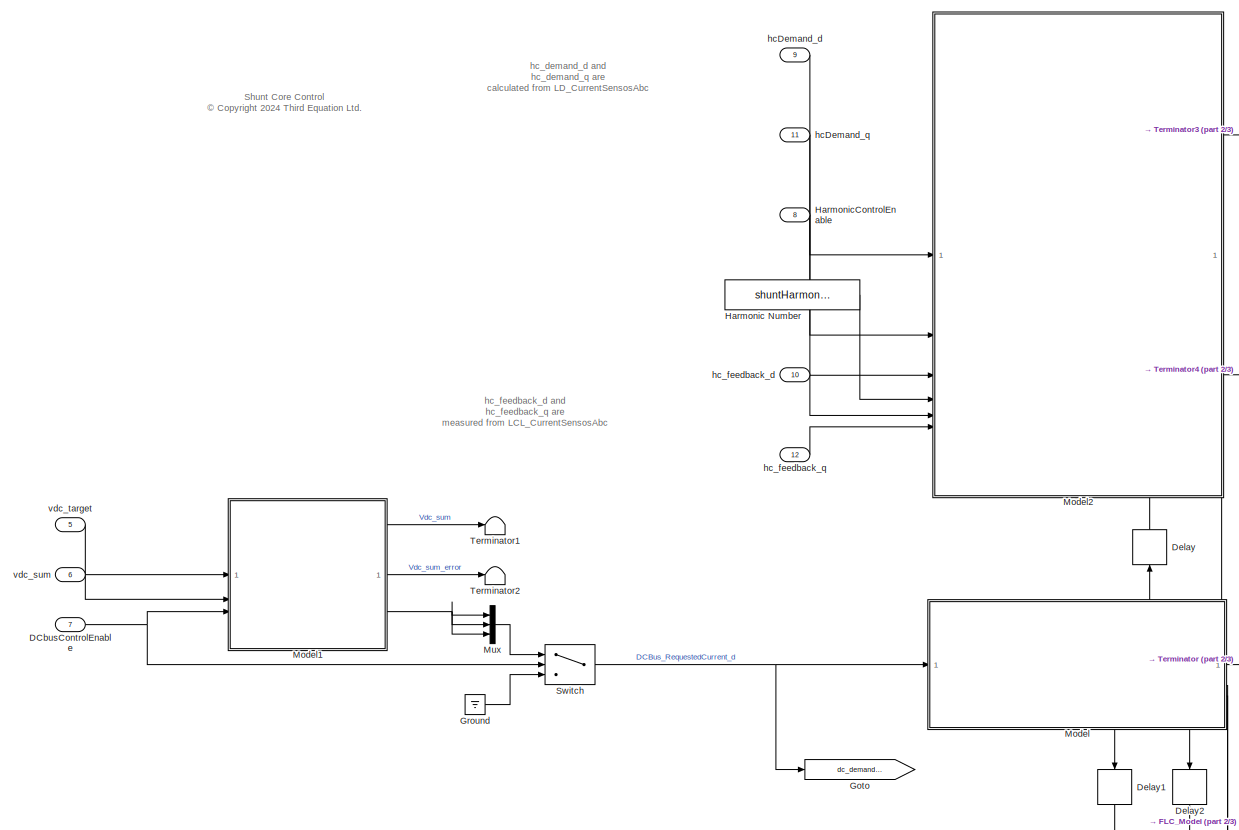
[diagram: root canvas - part 1/3, top left region]
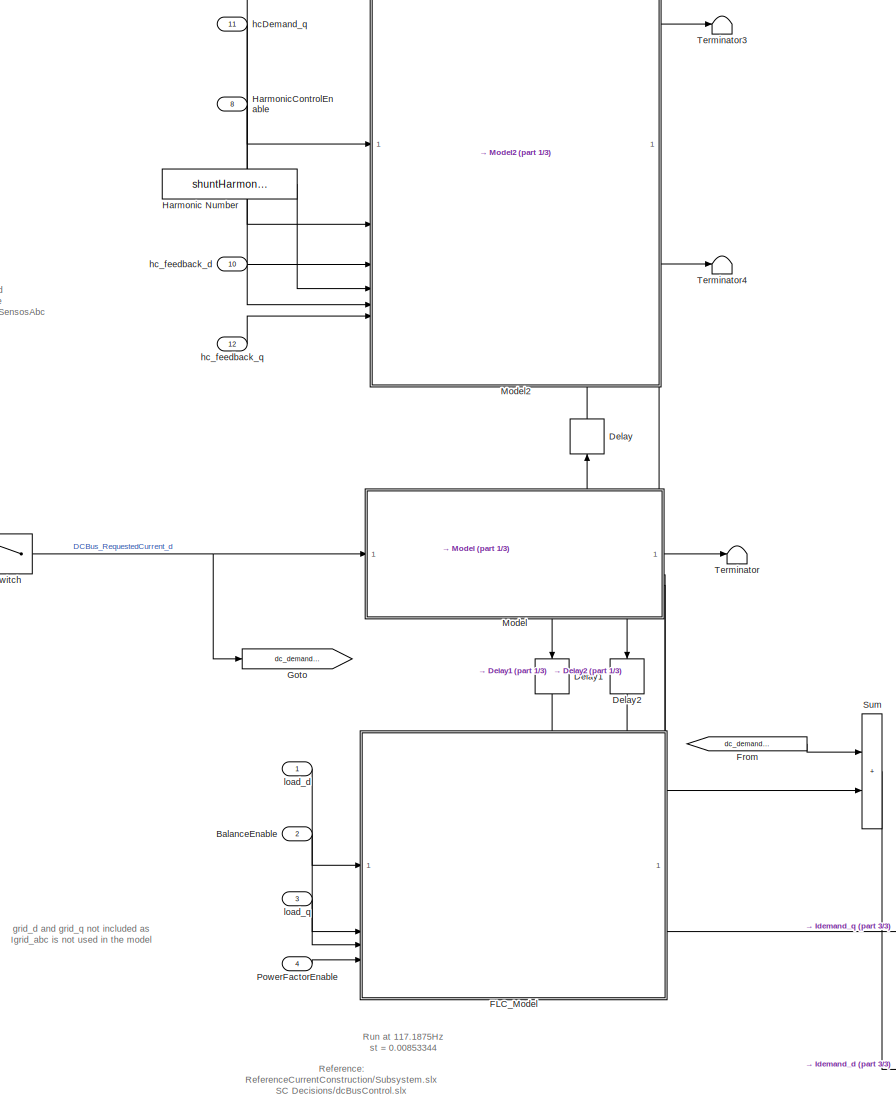
[diagram: root canvas - part 2/3, center side, full height]
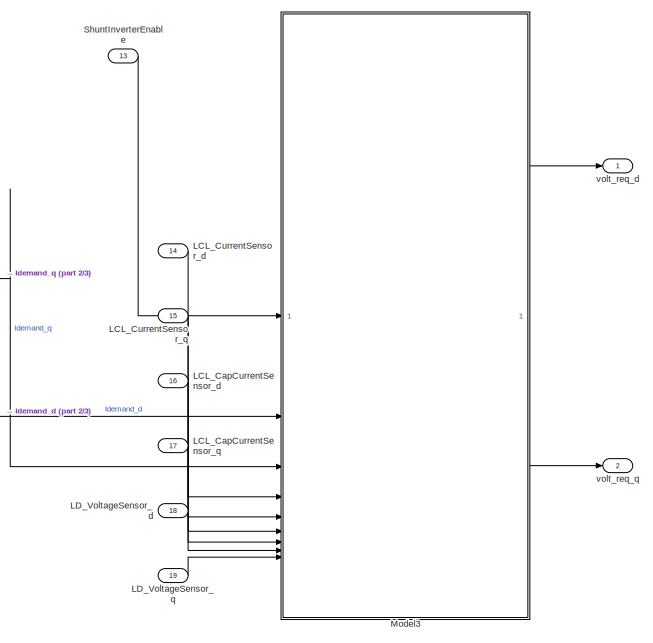
[diagram: root canvas - part 3/3, bottom right region]
MODEL slx_82d3854d65ed
KIND model
BLOCK [Inport] BalanceEnable
  OutDataTypeStr = boolean
  Port = 2
  PortDimensions = 1
BLOCK [Inport] DCbusControlEnable
  OutDataTypeStr = boolean
  Port = 7
  PortDimensions = 1
BLOCK [Delay] Delay
  DelayLength = 1
  InputPortMap = u0
  NameLocation = right
BLOCK [Delay] Delay1
  DelayLength = 1
  InputPortMap = u0
  NameLocation = right
BLOCK [Delay] Delay2
  DelayLength = 1
  InputPortMap = u0
  NameLocation = right
BLOCK [ModelReference] FLC_Model
  ModelNameDialog = LC_core_control.slx
  ModelReferenceVersion = 1.19
  PortSchema = {"entries":[{"content":{"sides":[{"content":{"connectorIds":["In1","In3","In4","In6"]},"type":"ConnectorPlacement.EquallySpacedRectSide","uuid":"de9eeada-7440-4b08-b2ec-4a7e429c8558"},{"content":{"connectorIds":["Out1","Out3"],"side":"RIGHT"},"type":"ConnectorPlacement.EquallySpacedRectSide","uuid":"554e5ea5-630c-4643-a219-0945d0fcd03f"},{"content":{"connectorIds":["Out2","Out4","In2","In5"],"side...<+290ch>
BLOCK [From] From
  GotoTag = dc_demand_d
BLOCK [Goto] Goto
  GotoTag = dc_demand_d
BLOCK [Ground] Ground
BLOCK [Constant] Harmonic Number
  OutDataTypeStr = single
  Value = shuntHarmonicsCorrected
BLOCK [Inport] HarmonicControlEnable
  OutDataTypeStr = boolean
  Port = 8
  PortDimensions = 1
BLOCK [Inport] LCL_CapCurrentSensor_d
  Port = 16
BLOCK [Inport] LCL_CapCurrentSensor_q
  Port = 17
BLOCK [Inport] LCL_CurrentSensor_d
  Port = 14
BLOCK [Inport] LCL_CurrentSensor_q
  Port = 15
BLOCK [Inport] LD_VoltageSensor_d
  Port = 18
BLOCK [Inport] LD_VoltageSensor_q
  Port = 19
BLOCK [ModelReference] Model
  ModelNameDialog = I_core_limit.slx
  ModelReferenceVersion = 1.74
  PortSchema = {"entries":[{"content":{"sides":[{"content":{"connectorIds":["In1"]},"type":"ConnectorPlacement.EquallySpacedRectSide","uuid":"c776d5dc-1739-4d83-bf20-6e7ac3f81af8"},{"content":{"connectorIds":["Out4"],"side":"RIGHT"},"type":"ConnectorPlacement.EquallySpacedRectSide","uuid":"fa4048d2-a318-4ca0-bec8-685a5f092129"},{"content":{"connectorIds":["In4","Out1"],"side":"TOP"},"type":"ConnectorPlacement.Eq...<+421ch>
BLOCK [ModelReference] Model1
  ModelNameDialog = DC_core_control.slx
  ModelReferenceVersion = 1.26
BLOCK [ModelReference] Model2
  ModelNameDialog = HC_core_compensation_all.slx
  ModelReferenceVersion = 1.42
  PortSchema = {"entries":[{"content":{"sides":[{"content":{"connectorIds":["In1","In2","In3","In4","In5","In6"]},"type":"ConnectorPlacement.EquallySpacedRectSide","uuid":"9f9bd9f4-1593-4b02-bd3d-b3f4ce08cf8a"},{"content":{"connectorIds":["Out1","Out2"],"side":"RIGHT"},"type":"ConnectorPlacement.EquallySpacedRectSide","uuid":"e46f214e-0bf7-4013-8eab-5aa080a6ca41"},{"content":{"side":"TOP"},"type":"ConnectorPlace...<+415ch>
BLOCK [ModelReference] Model3
  ModelNameDialog = Idq_core_control.slx
  ModelReferenceVersion = 1.33
BLOCK [Mux] Mux
  DisplayOption = bar
  Inputs = 3
BLOCK [Inport] PowerFactorEnable
  OutDataTypeStr = boolean
  Port = 4
  PortDimensions = 1
BLOCK [Inport] ShuntInverterEnable
  OutDataTypeStr = boolean
  Port = 13
  PortDimensions = 1
BLOCK [Sum] Sum
  IconShape = rectangular
BLOCK [Switch] Switch
  Criteria = u2 > Threshold
  InputSameDT = off
  SaturateOnIntegerOverflow = off
BLOCK [Terminator] Terminator
BLOCK [Terminator] Terminator1
BLOCK [Terminator] Terminator2
BLOCK [Terminator] Terminator3
BLOCK [Terminator] Terminator4
BLOCK [Inport] hcDemand_d
  OutDataTypeStr = single
  Port = 9
  PortDimensions = [3 shuntNumHarmonics]
BLOCK [Inport] hcDemand_q
  OutDataTypeStr = single
  Port = 11
  PortDimensions = [3 shuntNumHarmonics]
BLOCK [Inport] hc_feedback_d
  OutDataTypeStr = single
  Port = 10
  PortDimensions = [3 shuntNumHarmonics]
BLOCK [Inport] hc_feedback_q
  OutDataTypeStr = single
  Port = 12
  PortDimensions = [3 shuntNumHarmonics]
BLOCK [Inport] load_d
  OutDataTypeStr = single
  PortDimensions = 3
BLOCK [Inport] load_q
  OutDataTypeStr = single
  Port = 3
  PortDimensions = 3
BLOCK [Inport] vdc_sum
  OutDataTypeStr = single
  Port = 6
  PortDimensions = 1
BLOCK [Inport] vdc_target
  OutDataTypeStr = single
  Port = 5
  PortDimensions = 1
BLOCK [Outport] volt_req_d
  OutDataTypeStr = single
  PortDimensions = 3
BLOCK [Outport] volt_req_q
  OutDataTypeStr = single
  Port = 2
  PortDimensions = 3
ANNOTATION (root): Shunt Core Control <copyright redacted>
ANNOTATION (root): Run at 117.1875Hz st = 0.00853344
ANNOTATION (root): Reference: ReferenceCurrentConstruction/Subsystem.slx SC Decisions/dcBusControl.slx
ANNOTATION (root): grid_d and grid_q not included as Igrid_abc is not used in the model
ANNOTATION (root): hc_demand_d and hc_demand_q are calculated from LD_CurrentSensosAbc
ANNOTATION (root): hc_feedback_d and hc_feedback_q are measured from LCL_CurrentSensosAbc
LINE BalanceEnable:1 -> FLC_Model:3
NET DCbusControlEnable:1 -> Model1:3, Switch:2
LINE Delay1:1 -> FLC_Model:2
LINE Delay2:1 -> FLC_Model:5
LINE Delay:1 -> Model2:7
LINE FLC_Model:1 -> Sum:2
LINE FLC_Model:2 -> Model:2
LINE FLC_Model:3 -> Model3:3
LINE FLC_Model:4 -> Model:3
LINE From:1 -> Sum:1
LINE Ground:1 -> Switch:3
LINE Harmonic Number:1 -> Model2:4
LINE HarmonicControlEnable:1 -> Model2:3
LINE LCL_CapCurrentSensor_d:1 -> Model3:6
LINE LCL_CapCurrentSensor_q:1 -> Model3:7
LINE LCL_CurrentSensor_d:1 -> Model3:4
LINE LCL_CurrentSensor_q:1 -> Model3:5
LINE LD_VoltageSensor_d:1 -> Model3:8
LINE LD_VoltageSensor_q:1 -> Model3:9
LINE Model1:1 -> Terminator1:1
LINE Model1:2 -> Terminator2:1
NET Model1:3 -> Mux:1, Mux:2, Mux:3
LINE Model2:1 -> Terminator3:1
LINE Model2:2 -> Terminator4:1
LINE Model2:3 -> Model:4
LINE Model3:1 -> volt_req_d:1
LINE Model3:2 -> volt_req_q:1
LINE Model:1 -> Delay:1
LINE Model:2 -> Delay1:1
LINE Model:3 -> Delay2:1
LINE Model:4 -> Terminator:1
LINE Mux:1 -> Switch:1
LINE PowerFactorEnable:1 -> FLC_Model:6
LINE ShuntInverterEnable:1 -> Model3:1
LINE Sum:1 -> Model3:2
NET Switch:1 -> Goto:1, Model:1
LINE hcDemand_d:1 -> Model2:1
LINE hcDemand_q:1 -> Model2:2
LINE hc_feedback_d:1 -> Model2:5
LINE hc_feedback_q:1 -> Model2:6
LINE load_d:1 -> FLC_Model:1
LINE load_q:1 -> FLC_Model:4
LINE vdc_sum:1 -> Model1:2
LINE vdc_target:1 -> Model1:1
note: NET lines group one-source signal fan-out (src -> all destinations, sorted); 1:1 wires keep LINE
